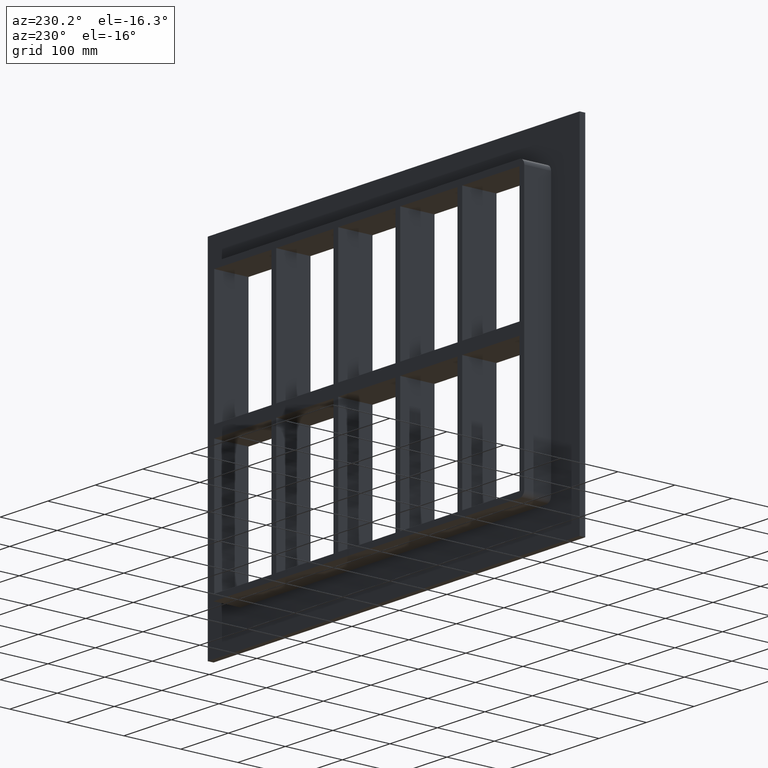
[diagram: clean part render]
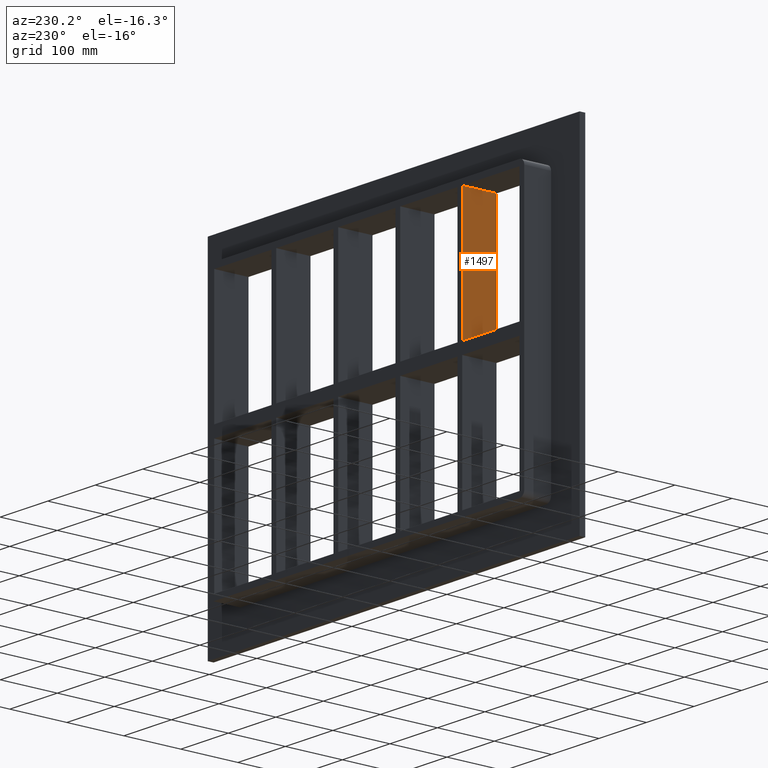
[diagram: same view with one face highlighted and labeled with its STEP entity id]
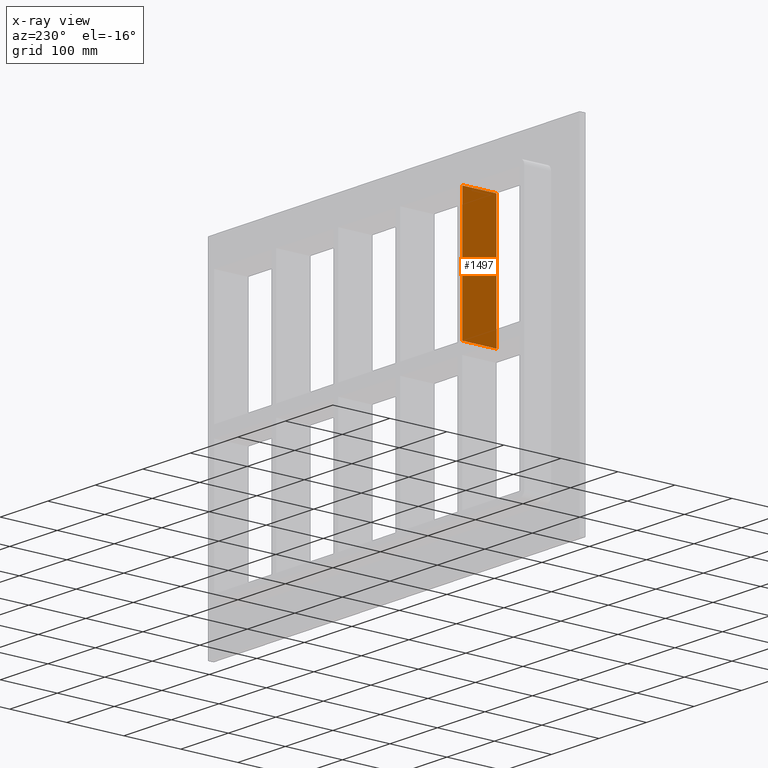
[diagram: x-ray of the same camera — body ghosted, the highlighted face saturated]
A machine part, auxiliary view. The second image highlights one B-rep face of the part: STEP entity #1497.
The next image is the same camera in x-ray: the body ghosted, the highlighted face saturated — about 0% of this face is hidden behind the body in this view.
In plain terms, the highlighted planar face has unit normal (-1, 0, 0).
Its self-contained STEP definition (entity closure, byte-faithful):
#879=CARTESIAN_POINT('',(-200.75000000000136,-3.0,227.99999999999997));
#880=VERTEX_POINT('',#879);
#887=CARTESIAN_POINT('',(-200.75000000000134,-3.0,10.0));
#888=VERTEX_POINT('',#887);
#889=CARTESIAN_POINT('',(-200.75000000000134,-3.0,10.0));
#890=DIRECTION('',(0.0,0.0,1.0));
#891=VECTOR('',#890,217.99999999999997);
#892=LINE('',#889,#891);
#893=EDGE_CURVE('',#888,#880,#892,.T.);
#1176=CARTESIAN_POINT('',(-200.75000000000134,57.0,10.0));
#1177=VERTEX_POINT('',#1176);
#1184=CARTESIAN_POINT('',(-200.75000000000136,57.0,227.99999999999997));
#1185=VERTEX_POINT('',#1184);
#1186=CARTESIAN_POINT('',(-200.75000000000134,57.0,10.0));
#1187=DIRECTION('',(0.0,0.0,1.0));
#1188=VECTOR('',#1187,217.99999999999997);
#1189=LINE('',#1186,#1188);
#1190=EDGE_CURVE('',#1177,#1185,#1189,.T.);
#1423=CARTESIAN_POINT('',(-200.75000000000134,57.0,10.0));
#1424=DIRECTION('',(0.0,-1.0,0.0));
#1425=VECTOR('',#1424,60.0);
#1426=LINE('',#1423,#1425);
#1427=EDGE_CURVE('',#1177,#888,#1426,.T.);
#1481=CARTESIAN_POINT('',(-200.75000000000131,-3.0,-227.99999999999997));
#1482=DIRECTION('',(-1.0,0.0,0.0));
#1483=DIRECTION('',(0.0,0.0,1.0));
#1484=AXIS2_PLACEMENT_3D('',#1481,#1482,#1483);
#1485=PLANE('',#1484);
#1486=ORIENTED_EDGE('',*,*,#1427,.T.);
#1487=ORIENTED_EDGE('',*,*,#893,.T.);
#1488=CARTESIAN_POINT('',(-200.75000000000136,57.000000000000007,228.0));
#1489=DIRECTION('',(0.0,-1.0,0.0));
#1490=VECTOR('',#1489,60.000000000000007);
#1491=LINE('',#1488,#1490);
#1492=EDGE_CURVE('',#1185,#880,#1491,.T.);
#1493=ORIENTED_EDGE('',*,*,#1492,.F.);
#1494=ORIENTED_EDGE('',*,*,#1190,.F.);
#1495=EDGE_LOOP('',(#1486,#1487,#1493,#1494));
#1496=FACE_OUTER_BOUND('',#1495,.T.);
#1497=ADVANCED_FACE('',(#1496),#1485,.T.);